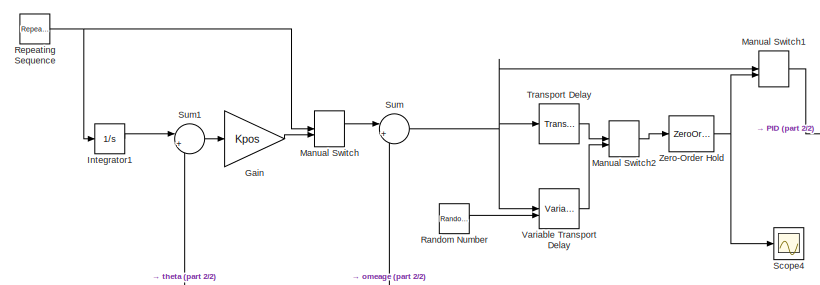
[diagram: root canvas - part 1/2, top left region]
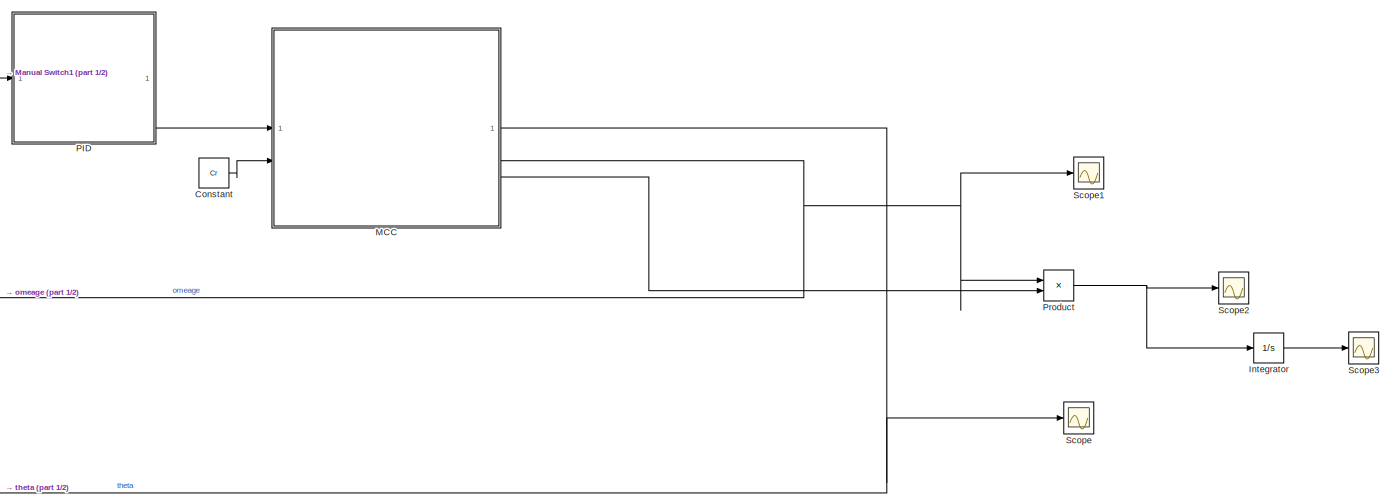
[diagram: root canvas - part 2/2, right side, full height]
MODEL slx_cf6bc298fa26
KIND model
CONFIG AbsTol = auto
CONFIG EnableMultiTasking = off
CONFIG FixedStep = auto
CONFIG InitFcn = TD2_config
CONFIG MaxStep = auto
CONFIG MinStep = auto
CONFIG RelTol = 1e-3
CONFIG SampleTimeConstraint = Unconstrained
CONFIG SolverName = ode15s
CONFIG StartFcn = TD2_config
CONFIG StartTime = 0.0
CONFIG StopTime = 1
BLOCK [Constant] Constant
  Value = Cr
BLOCK [Gain] Gain
  Gain = Kpos
BLOCK [Integrator] Integrator
BLOCK [Integrator] Integrator1
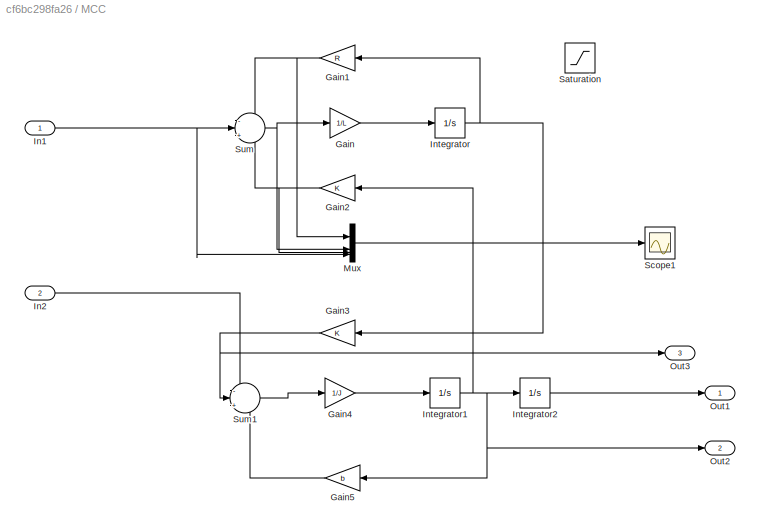
BLOCK [SubSystem] MCC
BLOCK [Gain] MCC/Gain
  Gain = 1/L
BLOCK [Gain] MCC/Gain1
  Gain = R
  NameLocation = top
BLOCK [Gain] MCC/Gain2
  Gain = K
  NameLocation = top
BLOCK [Gain] MCC/Gain3
  Gain = K
  NameLocation = top
BLOCK [Gain] MCC/Gain4
  Gain = 1/J
BLOCK [Gain] MCC/Gain5
  Gain = b
  NameLocation = top
BLOCK [Inport] MCC/In1
  IconDisplay = Signal name
BLOCK [Inport] MCC/In2
  Port = 2
BLOCK [Integrator] MCC/Integrator
BLOCK [Integrator] MCC/Integrator1
BLOCK [Integrator] MCC/Integrator2
BLOCK [Mux] MCC/Mux
  DisplayOption = bar
BLOCK [Outport] MCC/Out1
BLOCK [Outport] MCC/Out2
  Port = 2
BLOCK [Outport] MCC/Out3
  Port = 3
BLOCK [Saturate] MCC/Saturation
  LowerLimit = -70
  UpperLimit = 80
BLOCK [Scope] MCC/Scope1
  Floating = off
  NumInputPorts = 1
  ScopeSpecificationString = Simulink.scopes.TimeScopeBlockCfg('CurrentConfiguration', extmgr.ConfigurationSet(extmgr.Configuration('Core','General UI',true),extmgr.Configuration('Core','Source UI',true),extmgr.Configuration('Sources','WiredSimulink',true,'DataLoggingVariableName','ScopeData1'),extmgr.Configuration('Visuals','Time Domain',true,'SerializedDisplays',{struct('MinYLimReal','-166.48662','MaxYLimReal','285.11102','...<+1520ch>
BLOCK [Sum] MCC/Sum
  Inputs = -|+|-
BLOCK [Sum] MCC/Sum1
  Inputs = -|+|-
BLOCK [ManualSwitch] Manual Switch
BLOCK [ManualSwitch] Manual Switch1
  CurrentSetting = 0
BLOCK [ManualSwitch] Manual Switch2
  CurrentSetting = 0
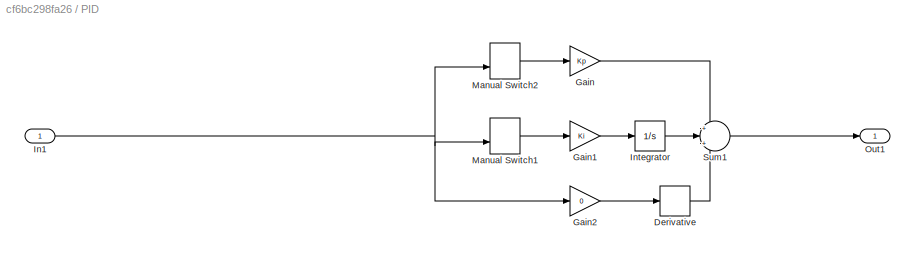
BLOCK [SubSystem] PID
BLOCK [Derivative] PID/Derivative
BLOCK [Gain] PID/Gain
  Gain = Kp
BLOCK [Gain] PID/Gain1
  Gain = Ki
BLOCK [Gain] PID/Gain2
  Gain = 0
BLOCK [Inport] PID/In1
BLOCK [Integrator] PID/Integrator
BLOCK [ManualSwitch] PID/Manual Switch1
BLOCK [ManualSwitch] PID/Manual Switch2
  CurrentSetting = 0
BLOCK [Outport] PID/Out1
BLOCK [Sum] PID/Sum1
  Inputs = +|+|+
BLOCK [Product] Product
BLOCK [RandomNumber] Random Number
  Mean = 0.002
  SampleTime = 0.001
  Variance = 0.001
BLOCK [Reference] Repeating Sequence  REF=simulink/Sources/Repeating
Sequence
  SourceBlock = simulink/Sources/Repeating\nSequence
  SourceType = Repeating table
BLOCK [Scope] Scope
  Floating = off
  NumInputPorts = 1
  ScopeSpecificationString = Simulink.scopes.TimeScopeBlockCfg('CurrentConfiguration', extmgr.ConfigurationSet(extmgr.Configuration('Core','General UI',true),extmgr.Configuration('Core','Source UI',true),extmgr.Configuration('Sources','WiredSimulink',true),extmgr.Configuration('Visuals','Time Domain',true,'SerializedDisplays',{struct('MinYLimReal','-4.03919','MaxYLimReal','36.3527','YLabelReal','','MinYLimMag','0.00000','MaxY...<+1512ch>
BLOCK [Scope] Scope1
  Floating = off
  NumInputPorts = 1
  ScopeSpecificationString = Simulink.scopes.TimeScopeBlockCfg('CurrentConfiguration', extmgr.ConfigurationSet(extmgr.Configuration('Core','General UI',true),extmgr.Configuration('Core','Source UI',true),extmgr.Configuration('Sources','WiredSimulink',true,'DataLoggingVariableName','ScopeData1'),extmgr.Configuration('Visuals','Time Domain',true,'SerializedDisplays',{struct('MinYLimReal','-107.84373','MaxYLimReal','152.69738','...<+1576ch>
BLOCK [Scope] Scope2
  Floating = off
  NumInputPorts = 1
  ScopeSpecificationString = Simulink.scopes.TimeScopeBlockCfg('CurrentConfiguration', extmgr.ConfigurationSet(extmgr.Configuration('Core','General UI',true),extmgr.Configuration('Core','Source UI',true),extmgr.Configuration('Sources','WiredSimulink',true,'DataLoggingVariableName','ScopeData2'),extmgr.Configuration('Visuals','Time Domain',true,'SerializedDisplays',{struct('MinYLimReal','-18066.01821','MaxYLimReal','17039.9766...<+1586ch>
BLOCK [Scope] Scope3
  Floating = off
  NumInputPorts = 1
  ScopeSpecificationString = Simulink.scopes.TimeScopeBlockCfg('CurrentConfiguration', extmgr.ConfigurationSet(extmgr.Configuration('Core','General UI',true),extmgr.Configuration('Core','Source UI',true),extmgr.Configuration('Sources','WiredSimulink',true,'DataLoggingVariableName','ScopeData3'),extmgr.Configuration('Visuals','Time Domain',true,'SerializedDisplays',{struct('MinYLimReal','-80.54989','MaxYLimReal','724.949','YLa...<+1566ch>
BLOCK [Scope] Scope4
  Floating = off
  NumInputPorts = 1
  ScopeSpecificationString = Simulink.scopes.TimeScopeBlockCfg('CurrentConfiguration', extmgr.ConfigurationSet(extmgr.Configuration('Core','General UI',true),extmgr.Configuration('Core','Source UI',true),extmgr.Configuration('Sources','WiredSimulink',true,'DataLoggingVariableName','ScopeData1'),extmgr.Configuration('Visuals','Time Domain',true,'SerializedDisplays',{struct('MinYLimReal','-105.6884','MaxYLimReal','100.40369','Y...<+1580ch>
BLOCK [Sum] Sum
  Inputs = |+-
BLOCK [Sum] Sum1
  Inputs = |+-
BLOCK [TransportDelay] Transport Delay
  DelayTime = delay
BLOCK [VariableTransportDelay] Variable Transport Delay
  MaximumDelay = 10
  VariableDelayType = Variable transport delay
BLOCK [ZeroOrderHold] Zero-Order Hold
  SampleTime = sampleTime
LINE Constant:1 -> MCC:2
LINE Gain:1 -> Manual Switch:2
LINE Integrator1:1 -> Sum1:1
LINE Integrator:1 -> Scope3:1
NET MCC/Gain1:1 -> MCC/Mux:1, MCC/Sum:1
NET MCC/Gain2:1 -> MCC/Mux:3, MCC/Sum:3
NET MCC/Gain3:1 -> MCC/Out3:1, MCC/Sum1:2
LINE MCC/Gain4:1 -> MCC/Integrator1:1
LINE MCC/Gain5:1 -> MCC/Sum1:3
LINE MCC/Gain:1 -> MCC/Integrator:1
NET MCC/In1:1 -> MCC/Mux:4, MCC/Sum:2
LINE MCC/In2:1 -> MCC/Sum1:1
NET MCC/Integrator1:1 -> MCC/Gain2:1, MCC/Gain5:1, MCC/Integrator2:1, MCC/Out2:1
LINE MCC/Integrator2:1 -> MCC/Out1:1
NET MCC/Integrator:1 -> MCC/Gain1:1, MCC/Gain3:1
LINE MCC/Mux:1 -> MCC/Scope1:1
LINE MCC/Sum1:1 -> MCC/Gain4:1
NET MCC/Sum:1 -> MCC/Gain:1, MCC/Mux:2
NET MCC:1 -> Scope:1, Sum1:2
NET MCC:2 -> Product:1, Scope1:1, Sum:2
LINE MCC:3 -> Product:2
LINE Manual Switch1:1 -> PID:1
LINE Manual Switch2:1 -> Zero-Order Hold:1
LINE Manual Switch:1 -> Sum:1
LINE PID/Derivative:1 -> PID/Sum1:3
LINE PID/Gain1:1 -> PID/Integrator:1
LINE PID/Gain2:1 -> PID/Derivative:1
LINE PID/Gain:1 -> PID/Sum1:1
NET PID/In1:1 -> PID/Gain2:1, PID/Manual Switch1:2, PID/Manual Switch2:2
LINE PID/Integrator:1 -> PID/Sum1:2
LINE PID/Manual Switch1:1 -> PID/Gain1:1
LINE PID/Manual Switch2:1 -> PID/Gain:1
LINE PID/Sum1:1 -> PID/Out1:1
LINE PID:1 -> MCC:1
NET Product:1 -> Integrator:1, Scope2:1
LINE Random Number:1 -> Variable Transport Delay:2
NET Repeating Sequence:1 -> Integrator1:1, Manual Switch:1
LINE Sum1:1 -> Gain:1
NET Sum:1 -> Manual Switch1:1, Transport Delay:1, Variable Transport Delay:1
LINE Transport Delay:1 -> Manual Switch2:1
LINE Variable Transport Delay:1 -> Manual Switch2:2
NET Zero-Order Hold:1 -> Manual Switch1:2, Scope4:1
note: NET lines group one-source signal fan-out (src -> all destinations, sorted); 1:1 wires keep LINE
